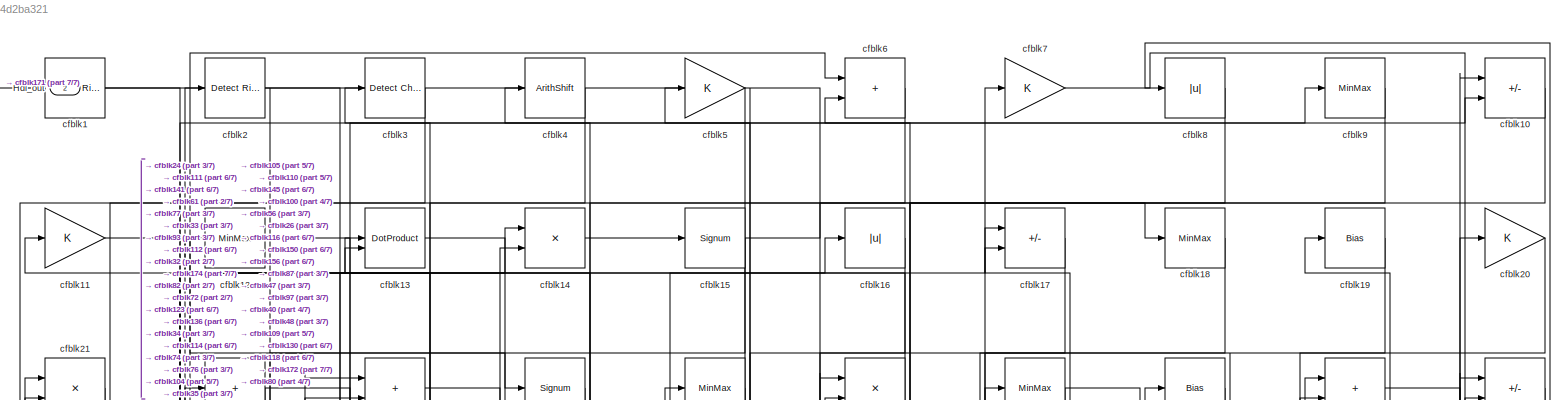
[diagram: root canvas - part 1/7, full width, top band]
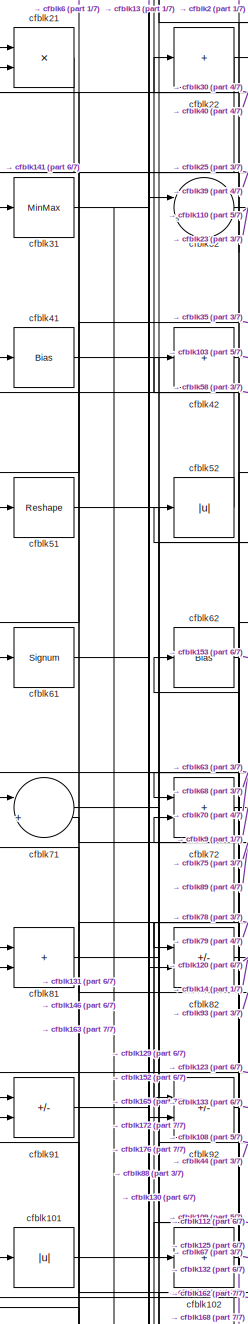
[diagram: root canvas - part 2/7, middle left region]
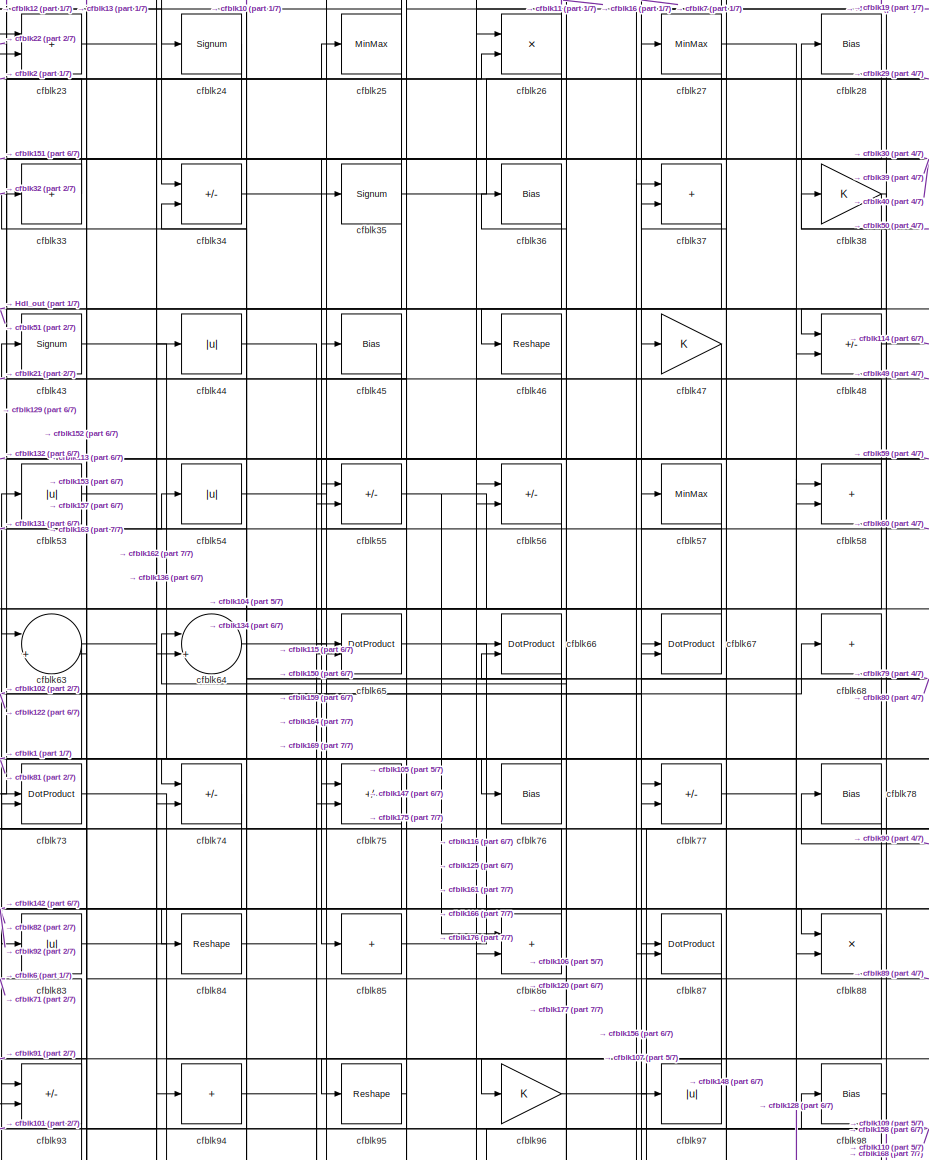
[diagram: root canvas - part 3/7, central region]
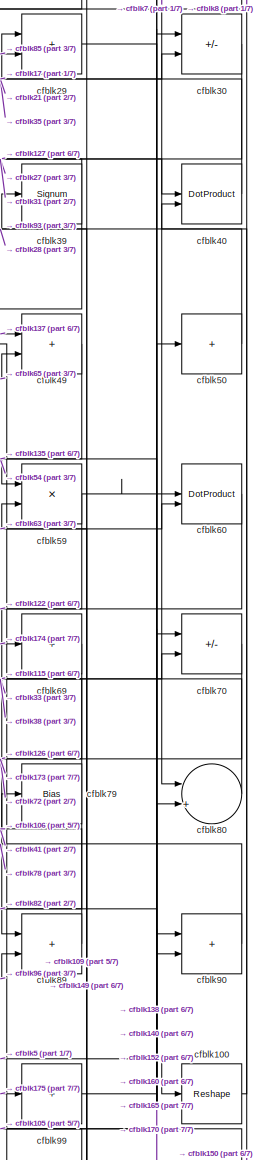
[diagram: root canvas - part 4/7, middle right region]
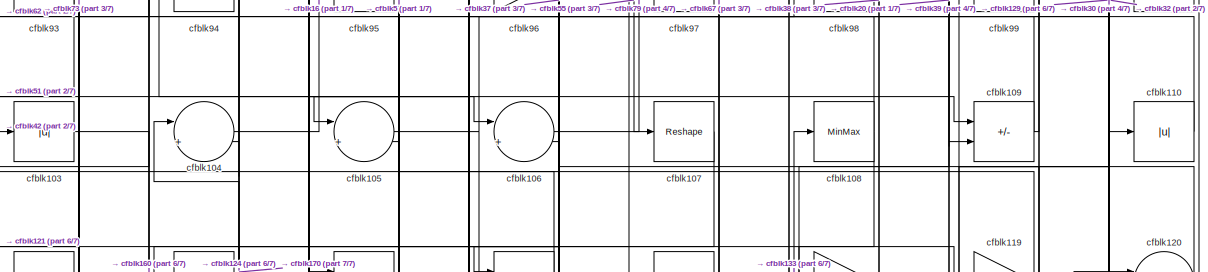
[diagram: root canvas - part 5/7, full width, middle band]
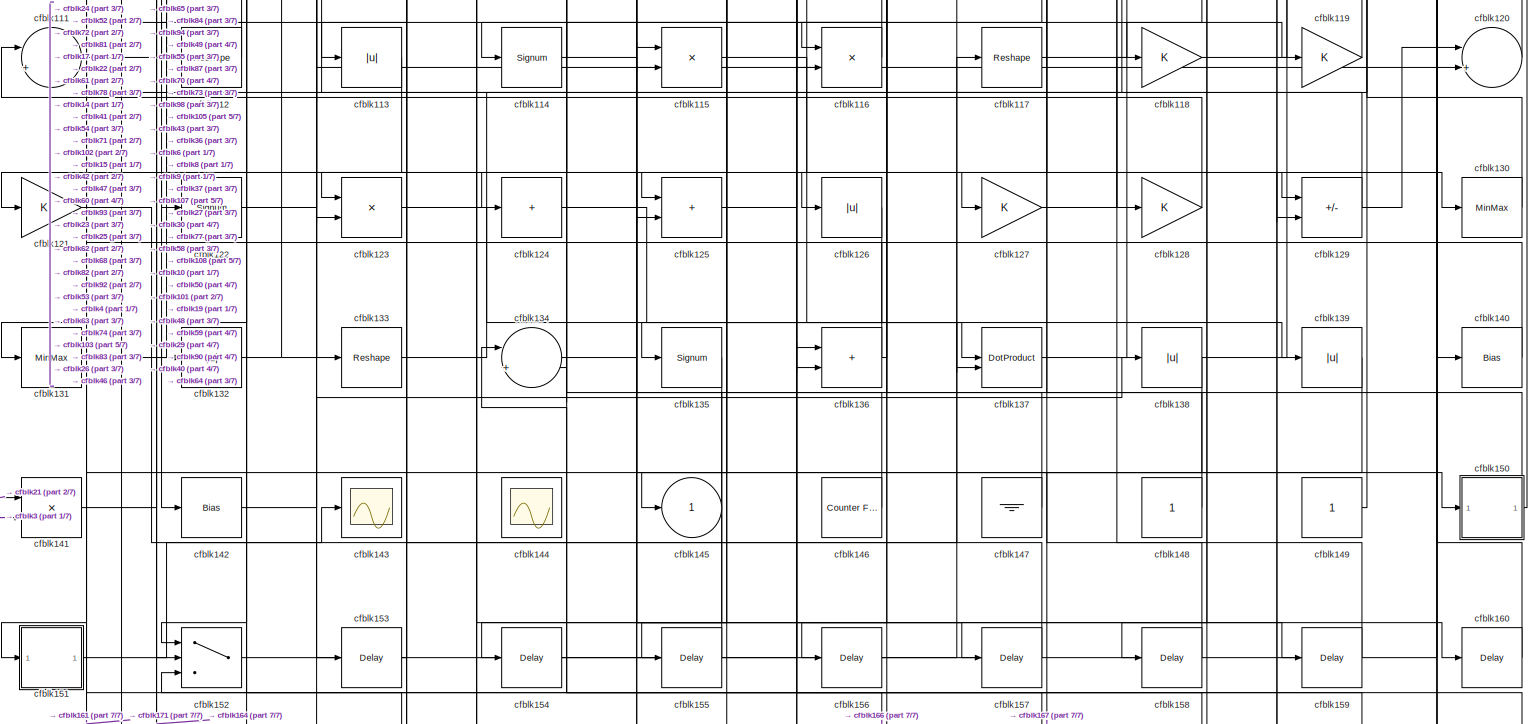
[diagram: root canvas - part 6/7, full width, bottom band]
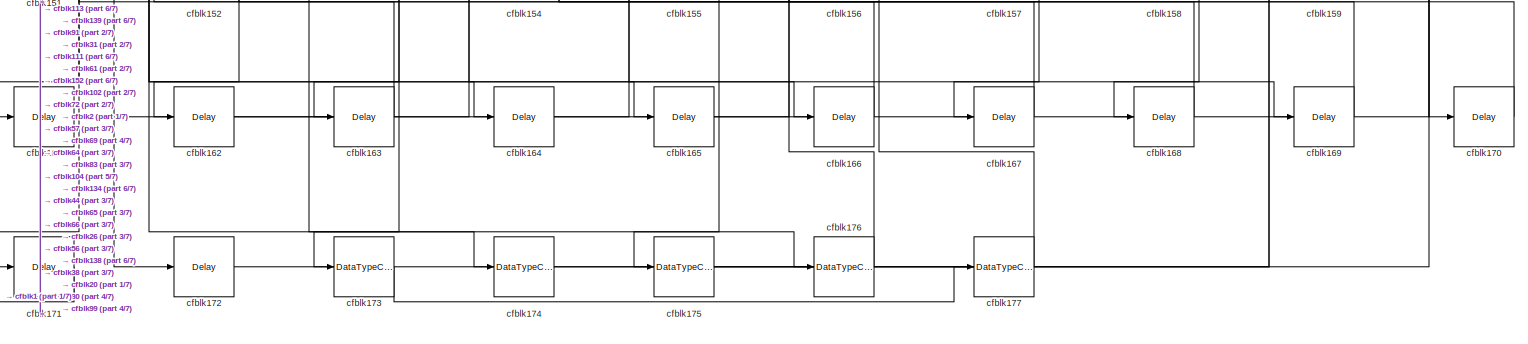
[diagram: root canvas - part 7/7, full width, bottom band]
MODEL slx_bbc34d2ba321
KIND model
CONFIG AbsTol = auto
CONFIG EnableMultiTasking = off
CONFIG FixedStep = auto
CONFIG MaxStep = auto
CONFIG MinStep = auto
CONFIG RelTol = 1e-3
CONFIG SampleTimeConstraint = Unconstrained
CONFIG SolverName = VariableStepAuto
CONFIG StartTime = 0.0
CONFIG StopTime = 10.0
BLOCK [Outport] Hdl_out
  OutDataTypeStr = uint8
  Port = 2
BLOCK [Reference] cfblk1  REF=hdlsllib/Logic and Bit
Operations/Detect Rise
Positive
  SourceBlock = hdlsllib/Logic and Bit\nOperations/Detect Rise\nPositive
  SourceType = Detect Rise Positive
BLOCK [Sum] cfblk10
  IconShape = rectangular
  Inputs = +-
  OutDataTypeStr = uint8
BLOCK [Reshape] cfblk100
BLOCK [Abs] cfblk101
  OutDataTypeStr = uint8
  SaturateOnIntegerOverflow = off
BLOCK [Sum] cfblk102
  IconShape = rectangular
  Inputs = +
  OutDataTypeStr = uint8
BLOCK [Abs] cfblk103
  OutDataTypeStr = uint8
  SaturateOnIntegerOverflow = off
BLOCK [Sum] cfblk104
  Inputs = |++
  OutDataTypeStr = uint8
BLOCK [Sum] cfblk105
  Inputs = |++
  OutDataTypeStr = uint8
BLOCK [Sum] cfblk106
  Inputs = |++
  OutDataTypeStr = uint8
BLOCK [Reshape] cfblk107
BLOCK [MinMax] cfblk108
  OutDataTypeStr = uint8
BLOCK [Sum] cfblk109
  IconShape = rectangular
  Inputs = +-
  OutDataTypeStr = uint8
BLOCK [Gain] cfblk11
  OutDataTypeStr = uint8
BLOCK [Abs] cfblk110
  OutDataTypeStr = uint8
  SaturateOnIntegerOverflow = off
BLOCK [Sum] cfblk111
  Inputs = |++
  OutDataTypeStr = uint8
BLOCK [Reshape] cfblk112
BLOCK [Abs] cfblk113
  OutDataTypeStr = uint8
  SaturateOnIntegerOverflow = off
BLOCK [Signum] cfblk114
BLOCK [Product] cfblk115
  Inputs = */
  OutDataTypeStr = uint8
  RndMeth = Zero
  SaturateOnIntegerOverflow = on
BLOCK [Product] cfblk116
  Inputs = */
  OutDataTypeStr = uint8
  RndMeth = Zero
  SaturateOnIntegerOverflow = on
BLOCK [Reshape] cfblk117
BLOCK [Gain] cfblk118
  OutDataTypeStr = uint8
BLOCK [Gain] cfblk119
  OutDataTypeStr = uint8
BLOCK [MinMax] cfblk12
  OutDataTypeStr = uint8
BLOCK [Sum] cfblk120
  Inputs = |++
  OutDataTypeStr = uint8
BLOCK [Gain] cfblk121
  OutDataTypeStr = uint8
BLOCK [Signum] cfblk122
BLOCK [Product] cfblk123
  Inputs = */
  OutDataTypeStr = uint8
  RndMeth = Zero
  SaturateOnIntegerOverflow = on
BLOCK [Sum] cfblk124
  IconShape = rectangular
  Inputs = +
  OutDataTypeStr = uint8
BLOCK [Sum] cfblk125
  IconShape = rectangular
  OutDataTypeStr = uint8
BLOCK [Abs] cfblk126
  OutDataTypeStr = uint8
  SaturateOnIntegerOverflow = off
BLOCK [Gain] cfblk127
  OutDataTypeStr = uint8
BLOCK [Gain] cfblk128
  OutDataTypeStr = uint8
BLOCK [Sum] cfblk129
  IconShape = rectangular
  Inputs = +-
  OutDataTypeStr = uint8
BLOCK [DotProduct] cfblk13
  OutDataTypeStr = uint8
BLOCK [MinMax] cfblk130
  OutDataTypeStr = uint8
BLOCK [MinMax] cfblk131
  OutDataTypeStr = uint8
BLOCK [Abs] cfblk132
  OutDataTypeStr = uint8
  SaturateOnIntegerOverflow = off
BLOCK [Reshape] cfblk133
BLOCK [Sum] cfblk134
  Inputs = |++
  OutDataTypeStr = uint8
BLOCK [Signum] cfblk135
BLOCK [Sum] cfblk136
  IconShape = rectangular
  OutDataTypeStr = uint8
BLOCK [DotProduct] cfblk137
  OutDataTypeStr = uint8
BLOCK [Abs] cfblk138
  OutDataTypeStr = uint8
  SaturateOnIntegerOverflow = off
BLOCK [Abs] cfblk139
  OutDataTypeStr = uint8
  SaturateOnIntegerOverflow = off
BLOCK [Product] cfblk14
  Inputs = */
  OutDataTypeStr = uint8
  RndMeth = Zero
  SaturateOnIntegerOverflow = on
BLOCK [Bias] cfblk140
  Bias = 0.0
  SaturateOnIntegerOverflow = off
BLOCK [Product] cfblk141
  Inputs = */
  OutDataTypeStr = uint8
  RndMeth = Zero
  SaturateOnIntegerOverflow = on
BLOCK [Bias] cfblk142
  Bias = 0.0
  SaturateOnIntegerOverflow = off
BLOCK [Scope] cfblk143
  Floating = off
  NumInputPorts = 1
  ScopeSpecificationString = Simulink.scopes.TimeScopeBlockCfg('CurrentConfiguration', extmgr.ConfigurationSet(extmgr.Configuration('Core','General UI',true),extmgr.Configuration('Core','Source UI',true),extmgr.Configuration('Sources','WiredSimulink',true,'DataLoggingVariableName','ScopeData2','DataLoggingSaveFormat','Array','DataLoggingLimitDataPoints',true,'DataLoggingDecimation','1'),extmgr.Configuration('Visuals','Time Do...<+868ch>
BLOCK [Scope] cfblk144
  Floating = on
  NumInputPorts = 1
  ScopeSpecificationString = Simulink.scopes.TimeScopeBlockCfg('CurrentConfiguration', extmgr.ConfigurationSet(extmgr.Configuration('Core','General UI',true,'FigureColor',[0.156862745098039 0.156862745098039 0.156862745098039]),extmgr.Configuration('Core','Source UI',true),extmgr.Configuration('Sources','WiredSimulink',true,'DataLoggingVariableName','ScopeData1','DataLoggingSaveFormat','StructureWithTime','DataLoggingLimitDat...<+2713ch>
BLOCK [Outport] cfblk145
  OutDataTypeStr = uint8
  VectorParamsAs1DForOutWhenUnconnected = off
BLOCK [Reference] cfblk146  REF=hdlsllib/Sources/Counter
Free-Running
  SourceBlock = hdlsllib/Sources/Counter\nFree-Running
  SourceType = Counter Free-Running
BLOCK [Ground] cfblk147
BLOCK [Constant] cfblk148
  OutDataTypeStr = uint8
  SampleTime = -1
BLOCK [Constant] cfblk149
  OutDataTypeStr = uint8
  SampleTime = -1
BLOCK [Signum] cfblk15
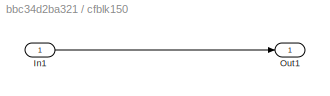
BLOCK [SubSystem] cfblk150
  LibrarySourceBlock = hdlsllib/Ports &\nSubsystems/Subsystem
BLOCK [Inport] cfblk150/In1
BLOCK [Outport] cfblk150/Out1
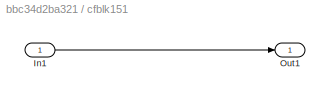
BLOCK [SubSystem] cfblk151
  LibrarySourceBlock = hdlsllib/Ports &\nSubsystems/Subsystem
BLOCK [Inport] cfblk151/In1
BLOCK [Outport] cfblk151/Out1
BLOCK [Switch] cfblk152
  InputSameDT = off
  OutDataTypeStr = uint8
  SaturateOnIntegerOverflow = off
BLOCK [Delay] cfblk153
  InputPortMap = u0
  SampleTime = 1
BLOCK [Delay] cfblk154
  InputPortMap = u0
  SampleTime = 1
BLOCK [Delay] cfblk155
  InputPortMap = u0
  SampleTime = 1
BLOCK [Delay] cfblk156
  InputPortMap = u0
  SampleTime = 1
BLOCK [Delay] cfblk157
  InputPortMap = u0
  SampleTime = 1
BLOCK [Delay] cfblk158
  InputPortMap = u0
  SampleTime = 1
BLOCK [Delay] cfblk159
  InputPortMap = u0
  SampleTime = 1
BLOCK [Abs] cfblk16
  OutDataTypeStr = uint8
  SaturateOnIntegerOverflow = off
BLOCK [Delay] cfblk160
  InputPortMap = u0
  SampleTime = 1
BLOCK [Delay] cfblk161
  InputPortMap = u0
  SampleTime = 1
BLOCK [Delay] cfblk162
  InputPortMap = u0
  SampleTime = 1
BLOCK [Delay] cfblk163
  InputPortMap = u0
  SampleTime = 1
BLOCK [Delay] cfblk164
  InputPortMap = u0
  SampleTime = 1
BLOCK [Delay] cfblk165
  InputPortMap = u0
  SampleTime = 1
BLOCK [Delay] cfblk166
  InputPortMap = u0
  SampleTime = 1
BLOCK [Delay] cfblk167
  InputPortMap = u0
  SampleTime = 1
BLOCK [Delay] cfblk168
  InputPortMap = u0
  SampleTime = 1
BLOCK [Delay] cfblk169
  InputPortMap = u0
  SampleTime = 1
BLOCK [Sum] cfblk17
  IconShape = rectangular
  Inputs = +-
  OutDataTypeStr = uint8
BLOCK [Delay] cfblk170
  InputPortMap = u0
  SampleTime = 1
BLOCK [Delay] cfblk171
  InputPortMap = u0
  SampleTime = 1
BLOCK [Delay] cfblk172
  InputPortMap = u0
  SampleTime = 1
BLOCK [DataTypeConversion] cfblk173
  OutDataTypeStr = uint8
  RndMeth = Floor
  SaturateOnIntegerOverflow = off
BLOCK [DataTypeConversion] cfblk174
  OutDataTypeStr = uint8
  RndMeth = Floor
  SaturateOnIntegerOverflow = off
BLOCK [DataTypeConversion] cfblk175
  OutDataTypeStr = uint8
  RndMeth = Floor
  SaturateOnIntegerOverflow = off
BLOCK [DataTypeConversion] cfblk176
  OutDataTypeStr = uint8
  RndMeth = Floor
  SaturateOnIntegerOverflow = off
BLOCK [DataTypeConversion] cfblk177
  OutDataTypeStr = uint8
  RndMeth = Floor
  SaturateOnIntegerOverflow = off
BLOCK [MinMax] cfblk18
  OutDataTypeStr = uint8
BLOCK [Bias] cfblk19
  Bias = 0.0
  SaturateOnIntegerOverflow = off
BLOCK [Reference] cfblk2  REF=hdlsllib/Logic and Bit
Operations/Detect Rise
Positive
  SourceBlock = hdlsllib/Logic and Bit\nOperations/Detect Rise\nPositive
  SourceType = Detect Rise Positive
BLOCK [Gain] cfblk20
  OutDataTypeStr = uint8
BLOCK [Product] cfblk21
  Inputs = */
  OutDataTypeStr = uint8
  RndMeth = Zero
  SaturateOnIntegerOverflow = on
BLOCK [Sum] cfblk22
  IconShape = rectangular
  Inputs = +
  OutDataTypeStr = uint8
BLOCK [Sum] cfblk23
  IconShape = rectangular
  OutDataTypeStr = uint8
BLOCK [Signum] cfblk24
BLOCK [MinMax] cfblk25
  OutDataTypeStr = uint8
BLOCK [Product] cfblk26
  Inputs = */
  OutDataTypeStr = uint8
  RndMeth = Zero
  SaturateOnIntegerOverflow = on
BLOCK [MinMax] cfblk27
  OutDataTypeStr = uint8
BLOCK [Bias] cfblk28
  Bias = 0.0
  SaturateOnIntegerOverflow = off
BLOCK [Sum] cfblk29
  IconShape = rectangular
  OutDataTypeStr = uint8
BLOCK [Reference] cfblk3  REF=simulink/Logic and Bit
Operations/Detect
Change
  LibrarySourceBlock = hdlsllib/Logic and Bit\nOperations/Detect\nChange
  SourceBlock = simulink/Logic and Bit\nOperations/Detect\nChange
  SourceType = Detect Change
BLOCK [Sum] cfblk30
  IconShape = rectangular
  Inputs = +-
  OutDataTypeStr = uint8
BLOCK [MinMax] cfblk31
  OutDataTypeStr = uint8
BLOCK [Sum] cfblk32
  Inputs = |++
  OutDataTypeStr = uint8
BLOCK [Sum] cfblk33
  IconShape = rectangular
  Inputs = +
  OutDataTypeStr = uint8
BLOCK [Sum] cfblk34
  IconShape = rectangular
  Inputs = +-
  OutDataTypeStr = uint8
BLOCK [Signum] cfblk35
BLOCK [Bias] cfblk36
  Bias = 0.0
  SaturateOnIntegerOverflow = off
BLOCK [Sum] cfblk37
  IconShape = rectangular
  OutDataTypeStr = uint8
BLOCK [Gain] cfblk38
  OutDataTypeStr = uint8
BLOCK [Signum] cfblk39
BLOCK [ArithShift] cfblk4
  BitShiftNumber = 8
  InputPortMap = u0
BLOCK [DotProduct] cfblk40
  OutDataTypeStr = uint8
BLOCK [Bias] cfblk41
  Bias = 0.0
  SaturateOnIntegerOverflow = off
BLOCK [Sum] cfblk42
  IconShape = rectangular
  Inputs = +
  OutDataTypeStr = uint8
BLOCK [Signum] cfblk43
BLOCK [Abs] cfblk44
  OutDataTypeStr = uint8
  SaturateOnIntegerOverflow = off
BLOCK [Bias] cfblk45
  Bias = 0.0
  SaturateOnIntegerOverflow = off
BLOCK [Reshape] cfblk46
BLOCK [Gain] cfblk47
  OutDataTypeStr = uint8
BLOCK [Sum] cfblk48
  IconShape = rectangular
  Inputs = +-
  OutDataTypeStr = uint8
BLOCK [Sum] cfblk49
  IconShape = rectangular
  OutDataTypeStr = uint8
BLOCK [Gain] cfblk5
  OutDataTypeStr = uint8
BLOCK [Sum] cfblk50
  IconShape = rectangular
  Inputs = +
  OutDataTypeStr = uint8
BLOCK [Reshape] cfblk51
BLOCK [Abs] cfblk52
  OutDataTypeStr = uint8
  SaturateOnIntegerOverflow = off
BLOCK [Abs] cfblk53
  OutDataTypeStr = uint8
  SaturateOnIntegerOverflow = off
BLOCK [Abs] cfblk54
  OutDataTypeStr = uint8
  SaturateOnIntegerOverflow = off
BLOCK [Sum] cfblk55
  IconShape = rectangular
  Inputs = +-
  OutDataTypeStr = uint8
BLOCK [Sum] cfblk56
  IconShape = rectangular
  Inputs = +-
  OutDataTypeStr = uint8
BLOCK [MinMax] cfblk57
  OutDataTypeStr = uint8
BLOCK [Sum] cfblk58
  IconShape = rectangular
  OutDataTypeStr = uint8
BLOCK [Product] cfblk59
  Inputs = */
  OutDataTypeStr = uint8
  RndMeth = Zero
  SaturateOnIntegerOverflow = on
BLOCK [Sum] cfblk6
  IconShape = rectangular
  OutDataTypeStr = uint8
BLOCK [DotProduct] cfblk60
  OutDataTypeStr = uint8
BLOCK [Signum] cfblk61
BLOCK [Bias] cfblk62
  Bias = 0.0
  SaturateOnIntegerOverflow = off
BLOCK [Sum] cfblk63
  Inputs = |++
  OutDataTypeStr = uint8
BLOCK [Sum] cfblk64
  Inputs = |++
  OutDataTypeStr = uint8
BLOCK [DotProduct] cfblk65
  OutDataTypeStr = uint8
BLOCK [DotProduct] cfblk66
  OutDataTypeStr = uint8
BLOCK [DotProduct] cfblk67
  OutDataTypeStr = uint8
BLOCK [Sum] cfblk68
  IconShape = rectangular
  Inputs = +
  OutDataTypeStr = uint8
BLOCK [Sum] cfblk69
  IconShape = rectangular
  Inputs = +
  OutDataTypeStr = uint8
BLOCK [Gain] cfblk7
  OutDataTypeStr = uint8
BLOCK [Sum] cfblk70
  IconShape = rectangular
  Inputs = +-
  OutDataTypeStr = uint8
BLOCK [Sum] cfblk71
  Inputs = |++
  OutDataTypeStr = uint8
BLOCK [Sum] cfblk72
  IconShape = rectangular
  OutDataTypeStr = uint8
BLOCK [DotProduct] cfblk73
  OutDataTypeStr = uint8
BLOCK [Sum] cfblk74
  IconShape = rectangular
  Inputs = +-
  OutDataTypeStr = uint8
BLOCK [Sum] cfblk75
  IconShape = rectangular
  Inputs = +-
  OutDataTypeStr = uint8
BLOCK [Bias] cfblk76
  Bias = 0.0
  SaturateOnIntegerOverflow = off
BLOCK [Sum] cfblk77
  IconShape = rectangular
  Inputs = +-
  OutDataTypeStr = uint8
BLOCK [Bias] cfblk78
  Bias = 0.0
  SaturateOnIntegerOverflow = off
BLOCK [Bias] cfblk79
  Bias = 0.0
  SaturateOnIntegerOverflow = off
BLOCK [Abs] cfblk8
  OutDataTypeStr = uint8
  SaturateOnIntegerOverflow = off
BLOCK [Sum] cfblk80
  Inputs = |++
  OutDataTypeStr = uint8
BLOCK [Sum] cfblk81
  IconShape = rectangular
  OutDataTypeStr = uint8
BLOCK [Sum] cfblk82
  IconShape = rectangular
  Inputs = +-
  OutDataTypeStr = uint8
BLOCK [Abs] cfblk83
  OutDataTypeStr = uint8
  SaturateOnIntegerOverflow = off
BLOCK [Reshape] cfblk84
BLOCK [Sum] cfblk85
  IconShape = rectangular
  Inputs = +
  OutDataTypeStr = uint8
BLOCK [Sum] cfblk86
  IconShape = rectangular
  OutDataTypeStr = uint8
BLOCK [DotProduct] cfblk87
  OutDataTypeStr = uint8
BLOCK [Product] cfblk88
  Inputs = */
  OutDataTypeStr = uint8
  RndMeth = Zero
  SaturateOnIntegerOverflow = on
BLOCK [Sum] cfblk89
  IconShape = rectangular
  OutDataTypeStr = uint8
BLOCK [MinMax] cfblk9
  OutDataTypeStr = uint8
BLOCK [Sum] cfblk90
  IconShape = rectangular
  OutDataTypeStr = uint8
BLOCK [Sum] cfblk91
  IconShape = rectangular
  Inputs = +-
  OutDataTypeStr = uint8
BLOCK [Sum] cfblk92
  IconShape = rectangular
  Inputs = +-
  OutDataTypeStr = uint8
BLOCK [Sum] cfblk93
  IconShape = rectangular
  Inputs = +-
  OutDataTypeStr = uint8
BLOCK [Sum] cfblk94
  IconShape = rectangular
  Inputs = +
  OutDataTypeStr = uint8
BLOCK [Reshape] cfblk95
BLOCK [Gain] cfblk96
  OutDataTypeStr = uint8
BLOCK [Abs] cfblk97
  OutDataTypeStr = uint8
  SaturateOnIntegerOverflow = off
BLOCK [Bias] cfblk98
  Bias = 0.0
  SaturateOnIntegerOverflow = off
BLOCK [Sum] cfblk99
  IconShape = rectangular
  Inputs = +
  OutDataTypeStr = uint8
LINE cfblk100:1 -> cfblk8:1
LINE cfblk101:1 -> cfblk44:1
NET cfblk102:1 -> cfblk125:2, cfblk162:1, cfblk67:2
LINE cfblk103:1 -> cfblk160:1
NET cfblk104:1 -> cfblk106:1, cfblk16:1
NET cfblk105:1 -> cfblk129:1, cfblk30:1
LINE cfblk106:1 -> cfblk79:1
LINE cfblk107:1 -> cfblk124:1
NET cfblk108:1 -> cfblk121:1, cfblk62:1
NET cfblk109:1 -> cfblk39:1, cfblk67:1
LINE cfblk10:1 -> cfblk74:1
NET cfblk110:1 -> cfblk5:1, cfblk73:1
NET cfblk111:1 -> cfblk10:2, cfblk14:2, cfblk164:1
LINE cfblk112:1 -> cfblk71:1
LINE cfblk113:1 -> cfblk161:1
NET cfblk114:1 -> cfblk157:1, cfblk4:1
NET cfblk115:1 -> cfblk137:1, cfblk70:2
LINE cfblk116:1 -> cfblk43:1
LINE cfblk117:1 -> cfblk119:1
LINE cfblk118:1 -> cfblk10:1
LINE cfblk119:1 -> cfblk101:1
LINE cfblk11:1 -> cfblk24:1
LINE cfblk120:1 -> cfblk64:1
LINE cfblk121:1 -> cfblk143:1
LINE cfblk122:1 -> cfblk68:1
LINE cfblk123:1 -> cfblk137:2
LINE cfblk124:1 -> cfblk139:1
LINE cfblk125:1 -> cfblk98:1
LINE cfblk126:1 -> cfblk155:1
LINE cfblk127:1 -> cfblk118:1
LINE cfblk128:1 -> cfblk111:1
NET cfblk129:1 -> cfblk120:1, cfblk53:1
LINE cfblk12:1 -> cfblk48:2
LINE cfblk130:1 -> cfblk19:1
LINE cfblk131:1 -> cfblk54:1
NET cfblk132:1 -> cfblk23:2, cfblk25:1, cfblk42:1
LINE cfblk133:1 -> cfblk108:1
LINE cfblk134:1 -> cfblk65:1
LINE cfblk135:1 -> cfblk154:1
NET cfblk136:1 -> cfblk36:1, cfblk3:1
LINE cfblk137:1 -> cfblk49:1
NET cfblk138:1 -> cfblk167:1, cfblk50:1
LINE cfblk139:1 -> cfblk171:1
LINE cfblk13:1 -> cfblk34:1
LINE cfblk140:1 -> cfblk111:2
LINE cfblk141:1 -> cfblk17:1
LINE cfblk142:1 -> cfblk138:1
NET cfblk146:1 -> cfblk52:1, cfblk81:1
LINE cfblk147:1 -> cfblk55:1
LINE cfblk148:1 -> cfblk27:1
LINE cfblk149:1 -> cfblk59:2
LINE cfblk14:1 -> cfblk15:1
LINE cfblk150/In1:1 -> cfblk150/Out1:1
NET cfblk150:1 -> cfblk40:2, cfblk6:2
LINE cfblk151/In1:1 -> cfblk151/Out1:1
LINE cfblk151:1 -> cfblk117:1
LINE cfblk152:1 -> cfblk90:1
LINE cfblk153:1 -> cfblk63:2
LINE cfblk154:1 -> cfblk136:1
LINE cfblk155:1 -> cfblk115:1
LINE cfblk156:1 -> cfblk37:1
LINE cfblk157:1 -> cfblk73:2
LINE cfblk158:1 -> cfblk58:1
LINE cfblk159:1 -> cfblk77:2
NET cfblk15:1 -> cfblk112:1, cfblk18:1
LINE cfblk160:1 -> cfblk70:1
LINE cfblk161:1 -> cfblk26:1
LINE cfblk162:1 -> cfblk64:2
LINE cfblk163:1 -> cfblk91:2
LINE cfblk164:1 -> cfblk65:2
LINE cfblk165:1 -> cfblk80:2
LINE cfblk166:1 -> cfblk134:1
LINE cfblk167:1 -> cfblk152:3
LINE cfblk168:1 -> cfblk72:2
LINE cfblk169:1 -> cfblk56:1
LINE cfblk16:1 -> cfblk56:2
LINE cfblk170:1 -> cfblk104:1
LINE cfblk171:1 -> cfblk1:1
LINE cfblk172:1 -> cfblk20:1
LINE cfblk173:1 -> cfblk177:1
LINE cfblk174:1 -> cfblk69:1
LINE cfblk175:1 -> cfblk99:1
LINE cfblk176:1 -> cfblk66:1
LINE cfblk177:1 -> cfblk66:2
LINE cfblk17:1 -> cfblk145:1
LINE cfblk18:1 -> cfblk47:1
NET cfblk19:1 -> cfblk48:1, cfblk87:2
LINE cfblk1:1 -> cfblk77:1
LINE cfblk20:1 -> cfblk109:2
LINE cfblk21:1 -> cfblk141:1
NET cfblk22:1 -> cfblk152:2, cfblk88:2
LINE cfblk23:1 -> cfblk74:2
LINE cfblk24:1 -> cfblk151:1
LINE cfblk25:1 -> cfblk102:1
NET cfblk26:1 -> cfblk11:1, cfblk134:2, cfblk86:2
NET cfblk27:1 -> cfblk35:1, cfblk40:1, cfblk90:2
LINE cfblk28:1 -> cfblk83:1
LINE cfblk29:1 -> cfblk140:1
NET cfblk2:1 -> cfblk174:1, cfblk32:2
NET cfblk30:1 -> cfblk127:1, cfblk93:2
NET cfblk31:1 -> cfblk172:1, cfblk176:1
NET cfblk32:1 -> cfblk110:1, cfblk23:1
LINE cfblk33:1 -> cfblk2:1
LINE cfblk34:1 -> cfblk85:1
NET cfblk35:1 -> Hdl_out:1, cfblk29:1, cfblk51:1
LINE cfblk36:1 -> cfblk46:1
NET cfblk37:1 -> cfblk104:2, cfblk106:2
NET cfblk38:1 -> cfblk105:1, cfblk168:1, cfblk93:1
NET cfblk39:1 -> cfblk31:1, cfblk96:1
LINE cfblk3:1 -> cfblk141:2
NET cfblk40:1 -> cfblk17:2, cfblk21:1
NET cfblk41:1 -> cfblk130:1, cfblk30:2
LINE cfblk42:1 -> cfblk103:1
LINE cfblk43:1 -> cfblk76:1
LINE cfblk44:1 -> cfblk169:1
LINE cfblk45:1 -> cfblk55:2
LINE cfblk46:1 -> cfblk115:2
LINE cfblk47:1 -> cfblk132:1
LINE cfblk48:1 -> cfblk114:1
LINE cfblk49:1 -> cfblk135:1
LINE cfblk4:1 -> cfblk123:1
LINE cfblk50:1 -> cfblk28:1
LINE cfblk51:1 -> cfblk109:1
LINE cfblk52:1 -> cfblk22:1
LINE cfblk53:1 -> cfblk94:1
LINE cfblk54:1 -> cfblk59:1
NET cfblk55:1 -> cfblk107:1, cfblk86:1
LINE cfblk56:1 -> cfblk63:1
LINE cfblk57:1 -> cfblk163:1
NET cfblk58:1 -> cfblk21:2, cfblk37:2, cfblk84:1, cfblk95:1
NET cfblk59:1 -> cfblk60:1, cfblk89:1
NET cfblk5:1 -> cfblk100:1, cfblk105:2
LINE cfblk60:1 -> cfblk122:1
NET cfblk61:1 -> cfblk129:2, cfblk13:2, cfblk165:1
LINE cfblk62:1 -> cfblk153:1
NET cfblk63:1 -> cfblk26:2, cfblk60:2, cfblk81:2
LINE cfblk64:1 -> cfblk128:1
NET cfblk65:1 -> cfblk49:2, cfblk88:1
LINE cfblk66:1 -> cfblk175:1
LINE cfblk67:1 -> cfblk57:1
NET cfblk68:1 -> cfblk75:2, cfblk92:2
LINE cfblk69:1 -> cfblk173:1
LINE cfblk6:1 -> cfblk61:1
NET cfblk70:1 -> cfblk126:1, cfblk72:1
LINE cfblk71:1 -> cfblk123:2
NET cfblk72:1 -> cfblk131:1, cfblk9:1
NET cfblk73:1 -> cfblk136:2, cfblk87:1
LINE cfblk74:1 -> cfblk113:1
LINE cfblk75:1 -> cfblk92:1
LINE cfblk76:1 -> cfblk12:1
LINE cfblk77:1 -> cfblk58:2
NET cfblk78:1 -> cfblk142:1, cfblk82:2
NET cfblk79:1 -> cfblk33:1, cfblk82:1
LINE cfblk7:1 -> cfblk80:1
LINE cfblk80:1 -> cfblk38:1
LINE cfblk81:1 -> cfblk75:1
NET cfblk82:1 -> cfblk120:2, cfblk14:1
NET cfblk83:1 -> cfblk116:2, cfblk166:1
LINE cfblk84:1 -> cfblk150:1
LINE cfblk85:1 -> cfblk29:2
LINE cfblk86:1 -> cfblk34:2
NET cfblk87:1 -> cfblk125:1, cfblk97:1
LINE cfblk88:1 -> cfblk91:1
LINE cfblk89:1 -> cfblk41:1
LINE cfblk8:1 -> cfblk116:1
LINE cfblk90:1 -> cfblk78:1
LINE cfblk91:1 -> cfblk32:1
LINE cfblk92:1 -> cfblk133:1
NET cfblk93:1 -> cfblk152:1, cfblk6:1, cfblk71:2
LINE cfblk94:1 -> cfblk159:1
LINE cfblk95:1 -> cfblk45:1
LINE cfblk96:1 -> cfblk89:2
NET cfblk97:1 -> cfblk13:1, cfblk7:1
LINE cfblk98:1 -> cfblk158:1
LINE cfblk99:1 -> cfblk170:1
LINE cfblk9:1 -> cfblk156:1
note: NET lines group one-source signal fan-out (src -> all destinations, sorted); 1:1 wires keep LINE
